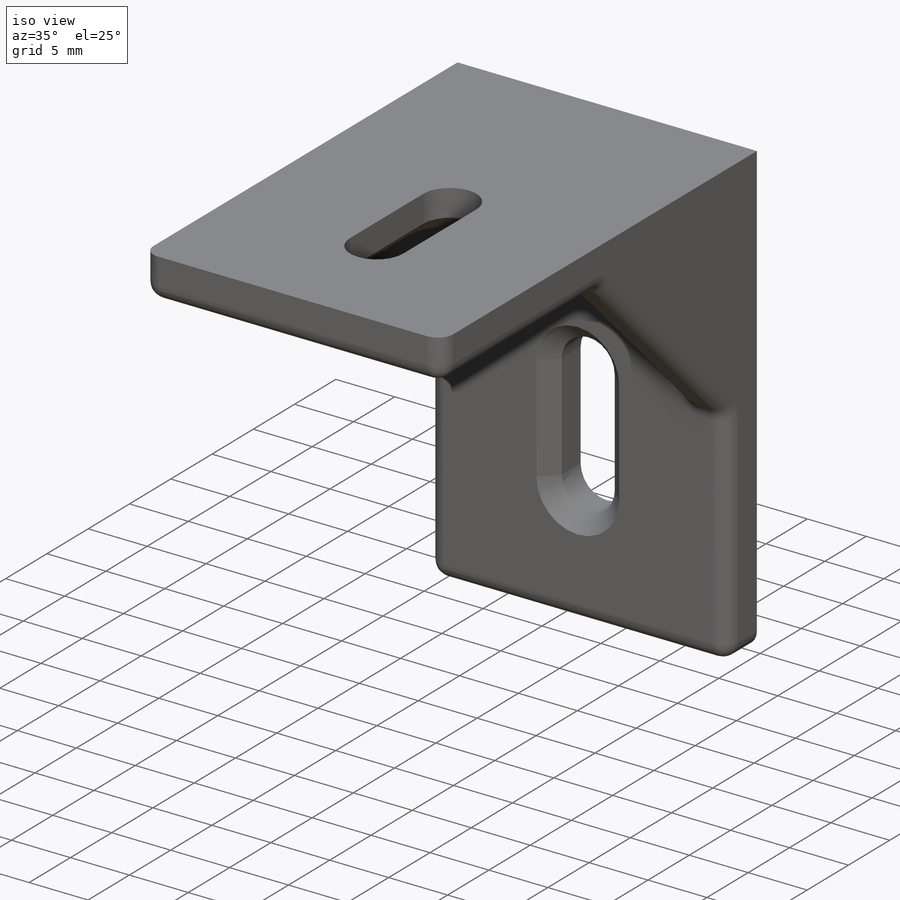
[diagram: iso view]
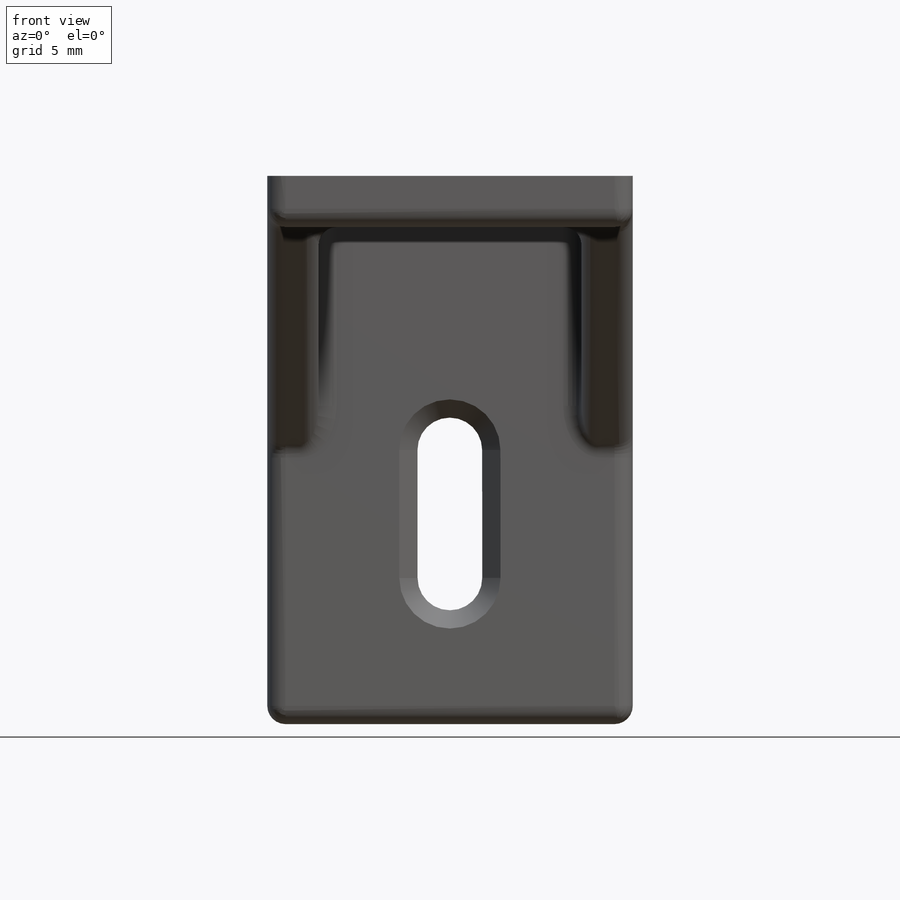
[diagram: front view]
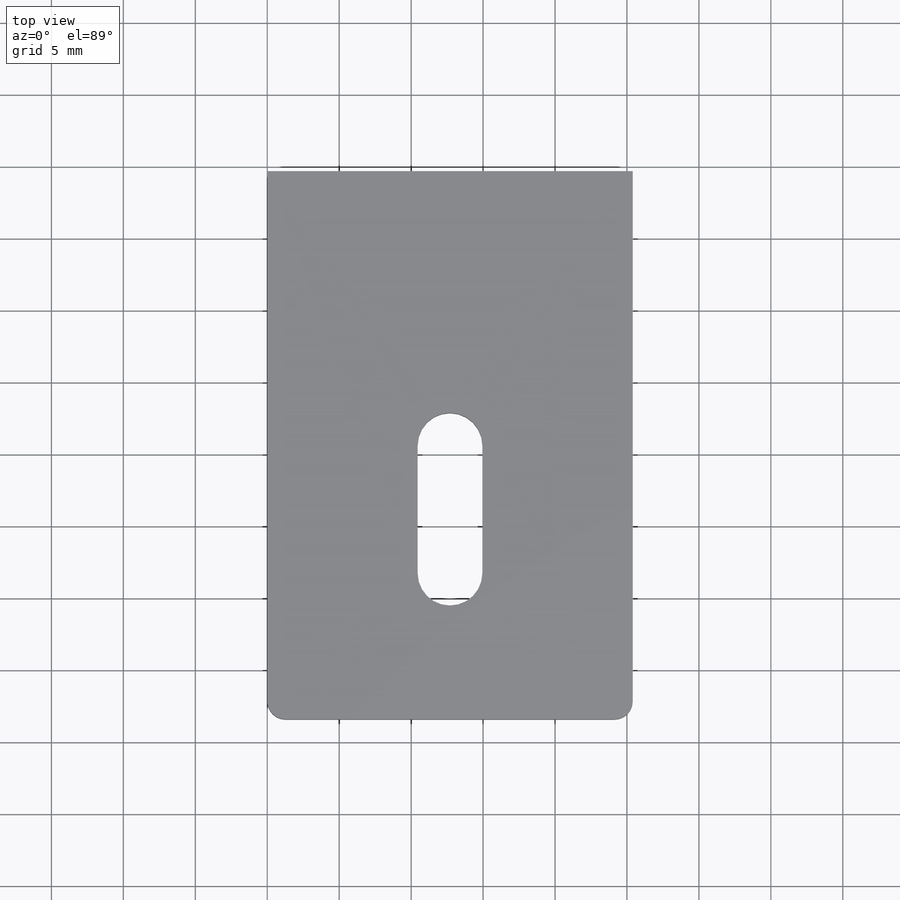
[diagram: top view]
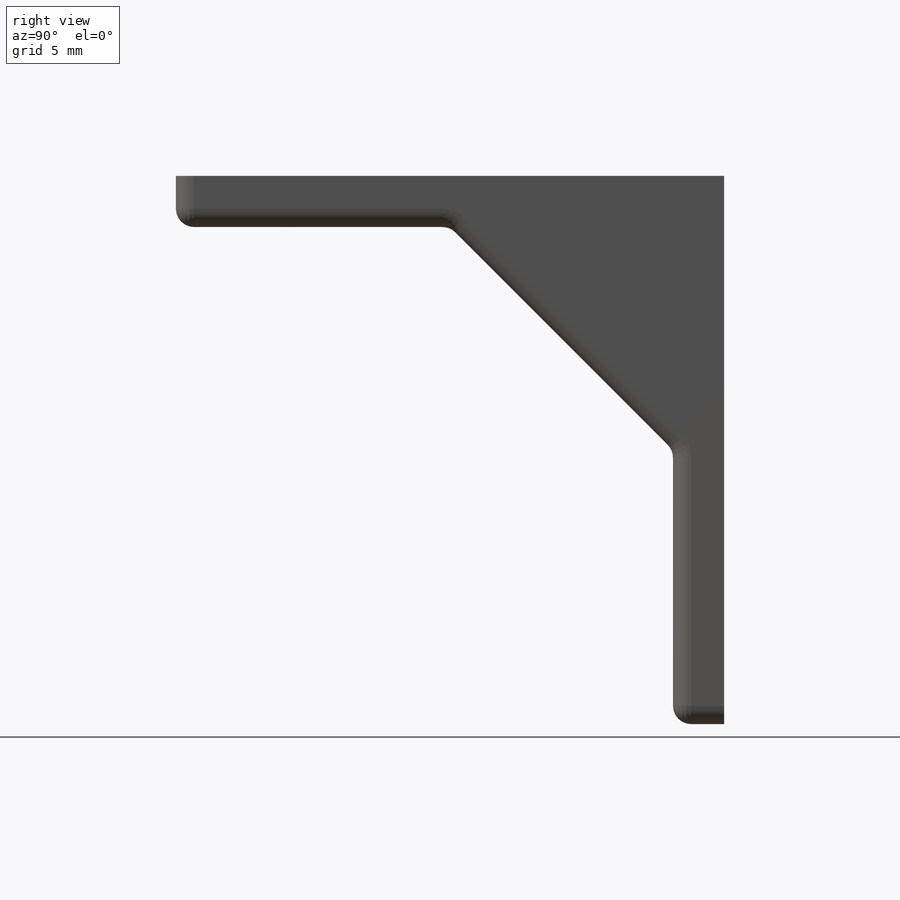
[diagram: right view]
SOLIDWORKS PART (.sldprt)
format: sldprt  version: not decoded by parser v0  size: 252,416 bytes
history: native  units: mm
features: sketch x3, cut_extrude x2, chamfer x2, material x1, extrude x1, shell x1, fillet x1 (+12 scaffold rows collapsed)
feature tree (23):
  scaffold x12  (default folders/planes/origin — collapsed)
  material  "Material <not specified>"
  sketch  "Sketch1"  dims[D1=38.1mm D2=3.556mm D3=3.556mm]
  extrude  "Boss-Extrude1"  Depth=25.4mm
  shell  "Shell1"  Thickness=3.556mm
  fillet  "Fillet2"  Radius=1.27mm
  sketch  "Sketch6"  dims[D1=4.4958mm]
  cut_extrude  "Cut-Extrude1"  [1 undecoded]
  chamfer  "Chamfer2"  Distance=1.27mm Angle=45deg
  sketch  "Sketch7"  dims[D1=4.4958mm]
  cut_extrude  "Cut-Extrude2"  [1 undecoded]
  chamfer  "Chamfer3"  Distance=1.27mm Angle=45deg
decode coverage: 8 of 10 modeling features carry decoded parameters
note: 2 parameter values undecoded
note: suppression state not decoded; provenance and decode notes live in map.json
